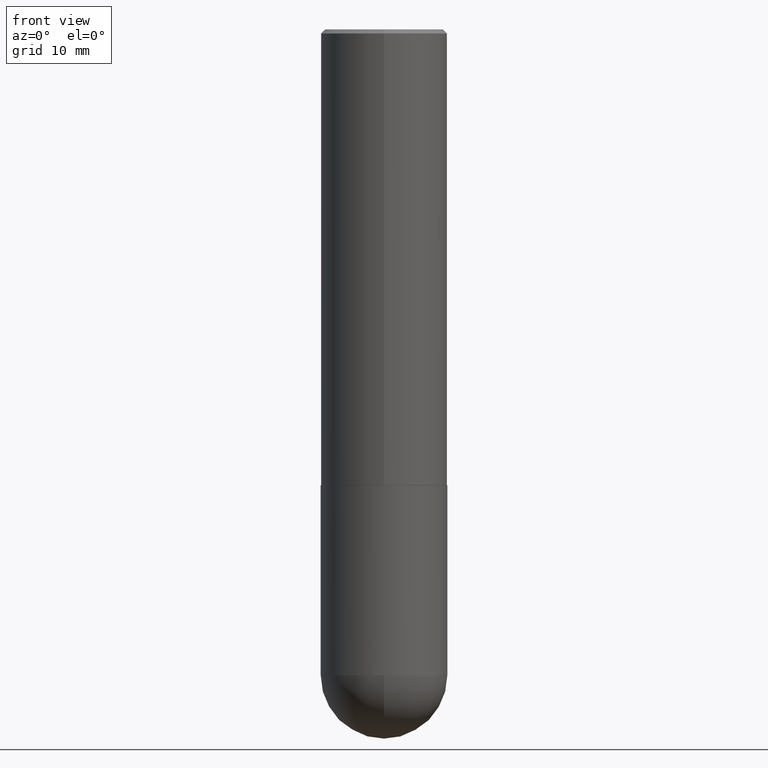
[diagram: clean part render]
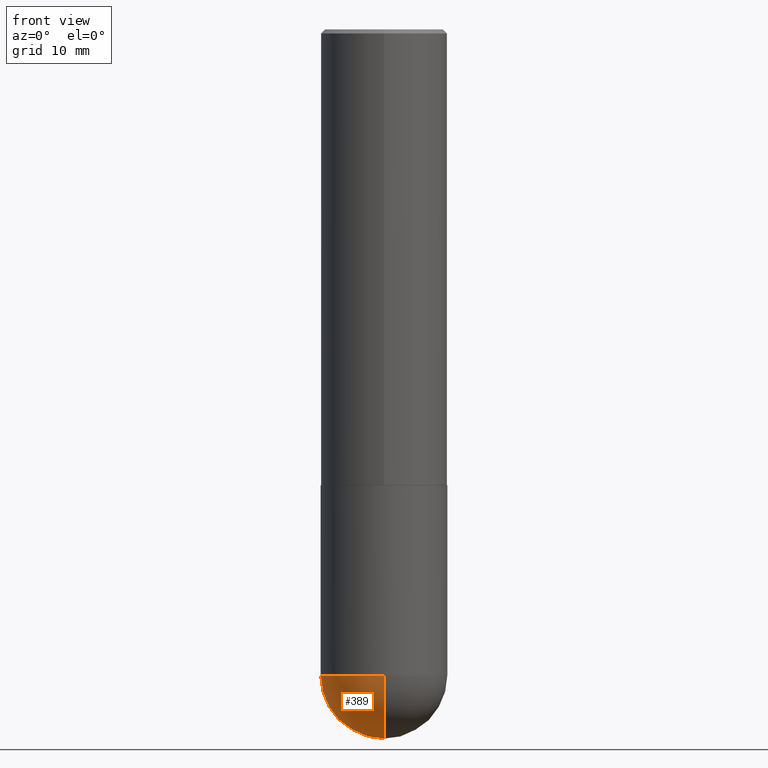
[diagram: same view with one face highlighted and labeled with its STEP entity id]
A machine part, front view. The second image highlights one B-rep face of the part: STEP entity #389.
In plain terms, the highlighted spherical surface has radius 7.9375 mm.
Its self-contained STEP definition (entity closure, byte-faithful):
#5 = DIRECTION ( 'NONE',  ( 1.000000000000000000, -6.982962677686265922E-15, 4.883557194083112340E-29 ) ) ;
#10 = AXIS2_PLACEMENT_3D ( 'NONE', #155, #35, #314 ) ;
#19 = CARTESIAN_POINT ( 'NONE',  ( 7.794931819715121781E-29, -1.112909676756252622E-14, -3.187500000000000000 ) ) ;
#21 = DIRECTION ( 'NONE',  ( 1.000000000000000000, -6.982962677686269077E-15, 0.000000000000000000 ) ) ;
#35 = DIRECTION ( 'NONE',  ( -2.445468806185136597E-29, 3.491481338843145583E-15, 1.000000000000000000 ) ) ;
#36 = FACE_OUTER_BOUND ( 'NONE', #125, .T. ) ;
#41 = DIRECTION ( 'NONE',  ( -7.105427357601000281E-15, -1.000000000000000000, 0.000000000000000000 ) ) ;
#62 = CARTESIAN_POINT ( 'NONE',  ( 7.463812041801236655E-29, -1.160327913570257494E-14, -3.187500000000000000 ) ) ;
#85 = CARTESIAN_POINT ( 'NONE',  ( 8.241383017002520278E-29, -1.267523194785438148E-14, -3.500000000000000444 ) ) ;
#92 = ORIENTED_EDGE ( 'NONE', *, *, #221, .F. ) ;
#98 = DIRECTION ( 'NONE',  ( 6.982962677686265922E-15, 1.000000000000000000, -3.496765431890253764E-15 ) ) ;
#101 = CARTESIAN_POINT ( 'NONE',  ( 7.463812041801236655E-29, -1.160327913570257494E-14, -3.187500000000000000 ) ) ;
#107 = CARTESIAN_POINT ( 'NONE',  ( -0.3125000000000000000, -7.272018840729490833E-15, -3.187500000000000000 ) ) ;
#119 = EDGE_CURVE ( 'NONE', #267, #326, #394, .T. ) ;
#125 = EDGE_LOOP ( 'NONE', ( #216, #262, #383, #92 ) ) ;
#132 = DIRECTION ( 'NONE',  ( 6.982962677686265922E-15, 1.000000000000000000, 0.000000000000000000 ) ) ;
#155 = CARTESIAN_POINT ( 'NONE',  ( 7.794931819715121781E-29, -1.112909676756252622E-14, -3.187500000000000000 ) ) ;
#180 = CIRCLE ( 'NONE', #10, 0.3125000000000000000 ) ;
#182 = EDGE_CURVE ( 'NONE', #267, #362, #333, .T. ) ;
#209 = AXIS2_PLACEMENT_3D ( 'NONE', #19, #234, #21 ) ;
#212 = AXIS2_PLACEMENT_3D ( 'NONE', #101, #292, #41 ) ;
#216 = ORIENTED_EDGE ( 'NONE', *, *, #119, .F. ) ;
#221 = EDGE_CURVE ( 'NONE', #326, #319, #277, .T. ) ;
#234 = DIRECTION ( 'NONE',  ( -2.445468806185136597E-29, 3.491481338843145583E-15, 1.000000000000000000 ) ) ;
#243 = AXIS2_PLACEMENT_3D ( 'NONE', #252, #280, #98 ) ;
#252 = CARTESIAN_POINT ( 'NONE',  ( 7.463812041801236655E-29, -1.160327913570257494E-14, -3.187500000000000000 ) ) ;
#262 = ORIENTED_EDGE ( 'NONE', *, *, #182, .T. ) ;
#267 = VERTEX_POINT ( 'NONE', #85 ) ;
#274 = CARTESIAN_POINT ( 'NONE',  ( -2.220446049250237350E-15, -0.3125000000000114908, -3.187499999999998668 ) ) ;
#277 = CIRCLE ( 'NONE', #209, 0.3125000000000000000 ) ;
#280 = DIRECTION ( 'NONE',  ( -1.000000000000000000, 6.982962677686265922E-15, -4.883557194083112901E-29 ) ) ;
#286 = CARTESIAN_POINT ( 'NONE',  ( 2.182175836777035261E-15, 0.3124999999999887867, -3.187500000000000888 ) ) ;
#288 = AXIS2_PLACEMENT_3D ( 'NONE', #62, #5, #132 ) ;
#292 = DIRECTION ( 'NONE',  ( -1.000000000000000000, 7.105427357601001070E-15, -4.926315508542082329E-29 ) ) ;
#311 = SPHERICAL_SURFACE ( 'NONE', #243, 0.3125000000000002776 ) ;
#314 = DIRECTION ( 'NONE',  ( 1.000000000000000000, -6.982962677686269077E-15, 0.000000000000000000 ) ) ;
#319 = VERTEX_POINT ( 'NONE', #107 ) ;
#326 = VERTEX_POINT ( 'NONE', #286 ) ;
#333 = CIRCLE ( 'NONE', #212, 0.3125000000000002776 ) ;
#362 = VERTEX_POINT ( 'NONE', #274 ) ;
#363 = EDGE_CURVE ( 'NONE', #319, #362, #180, .T. ) ;
#383 = ORIENTED_EDGE ( 'NONE', *, *, #363, .F. ) ;
#389 = ADVANCED_FACE ( 'NONE', ( #36 ), #311, .T. ) ;
#394 = CIRCLE ( 'NONE', #288, 0.3125000000000002776 ) ;